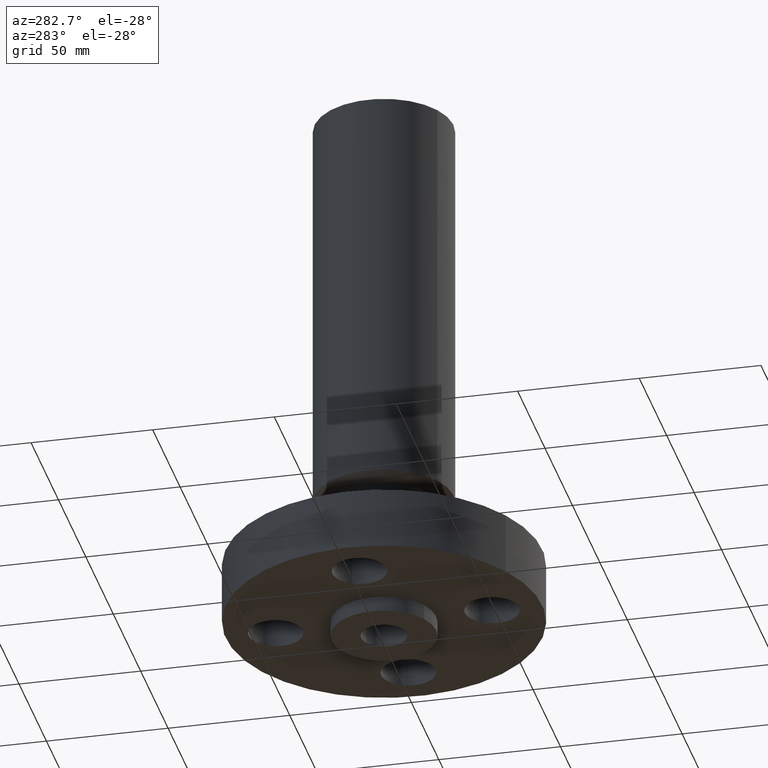
[diagram: clean part render]
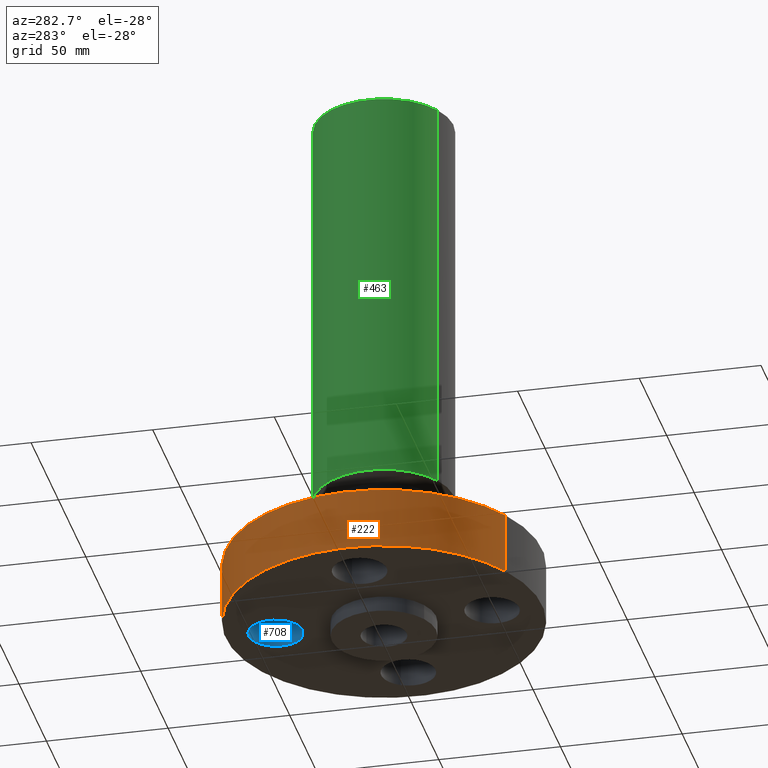
[diagram: same view with three faces highlighted in distinct colors, each labeled with its STEP entity id]
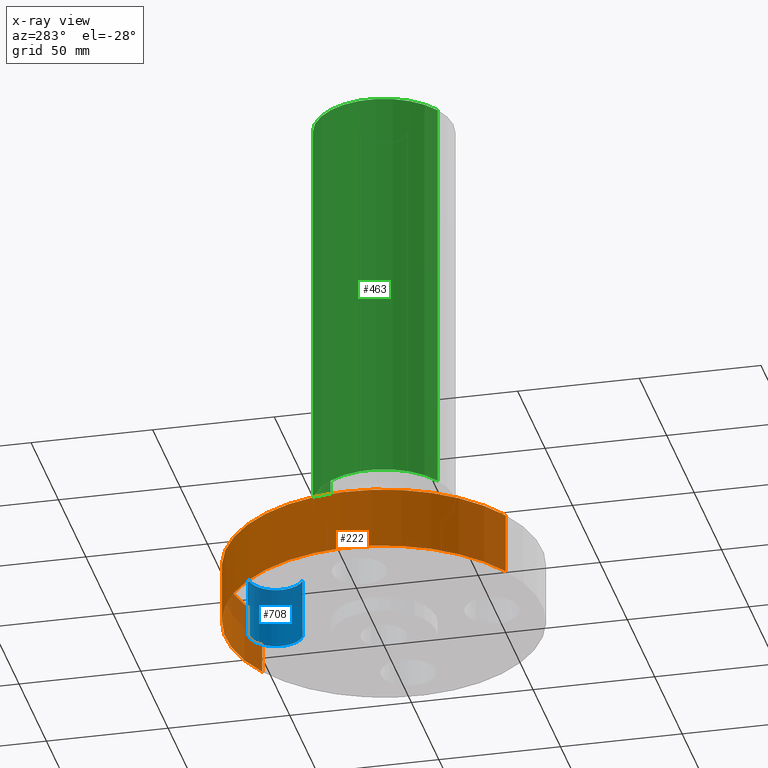
[diagram: x-ray of the same camera — body ghosted, the three highlighted faces saturated]
A machine part, auxiliary view with three faces highlighted in distinct colors.
The next image is the same camera in x-ray (body ghosted, the three faces saturated) — at least one of them is partly hidden behind the body in this view.
Their STEP definitions:

[orange] entity #222 — the highlighted cylindrical surface (partial cylindrical patch) has radius 65.024 mm, axis along (0, 0, -1).
#82=AXIS2_PLACEMENT_3D('Circle Axis2P3D',#80,#81,$) ;
#195=AXIS2_PLACEMENT_3D('Cylinder Axis2P3D',#192,#193,#194) ;
#206=AXIS2_PLACEMENT_3D('Circle Axis2P3D',#204,#205,$) ;
#80=CARTESIAN_POINT('Axis2P3D Location',(0.,0.,0.)) ;
#84=CARTESIAN_POINT('Vertex',(-1.22732937883,-2.24661135845,0.)) ;
#86=CARTESIAN_POINT('Vertex',(1.22732937883,2.24661135845,0.)) ;
#192=CARTESIAN_POINT('Axis2P3D Location',(0.,0.,4.25000000002)) ;
#197=CARTESIAN_POINT('Line Origine',(-1.22732937883,-2.24661135845,0.500000000002)) ;
#201=CARTESIAN_POINT('Vertex',(-1.22732937883,-2.24661135845,1.)) ;
#204=CARTESIAN_POINT('Axis2P3D Location',(0.,0.,1.)) ;
#208=CARTESIAN_POINT('Vertex',(1.22732937883,2.24661135845,1.)) ;
#211=CARTESIAN_POINT('Line Origine',(1.22732937883,2.24661135845,0.500000000002)) ;
#81=DIRECTION('Axis2P3D Direction',(0.,0.,-0.0393700787402)) ;
#193=DIRECTION('Axis2P3D Direction',(0.,0.,-0.0393700787402)) ;
#194=DIRECTION('Axis2P3D XDirection',(0.0188750212049,0.0345504945626,0.)) ;
#198=DIRECTION('Vector Direction',(0.,0.,-0.0393700787402)) ;
#205=DIRECTION('Axis2P3D Direction',(0.,0.,-0.0393700787402)) ;
#212=DIRECTION('Vector Direction',(0.,0.,-0.0393700787402)) ;
#199=VECTOR('Line Direction',#198,0.0393700787402) ;
#213=VECTOR('Line Direction',#212,0.0393700787402) ;
#217=ORIENTED_EDGE('',*,*,#88,.F.) ;
#218=ORIENTED_EDGE('',*,*,#203,.T.) ;
#219=ORIENTED_EDGE('',*,*,#210,.T.) ;
#220=ORIENTED_EDGE('',*,*,#215,.F.) ;
#222=ADVANCED_FACE('PartBody',(#221),#196,.T.) ;
#83=CIRCLE('generated circle',#82,2.56000000001) ;
#207=CIRCLE('generated circle',#206,2.56000000001) ;
#196=CYLINDRICAL_SURFACE('generated cylinder',#195,2.56000000001) ;
#88=EDGE_CURVE('',#85,#87,#83,.T.) ;
#203=EDGE_CURVE('',#85,#202,#200,.F.) ;
#210=EDGE_CURVE('',#202,#209,#207,.T.) ;
#215=EDGE_CURVE('',#87,#209,#214,.F.) ;
#216=EDGE_LOOP('',(#217,#218,#219,#220)) ;
#221=FACE_OUTER_BOUND('',#216,.T.) ;
#200=LINE('Line',#197,#199) ;
#214=LINE('Line',#211,#213) ;
#85=VERTEX_POINT('',#84) ;
#87=VERTEX_POINT('',#86) ;
#202=VERTEX_POINT('',#201) ;
#209=VERTEX_POINT('',#208) ;

[blue] entity #708 — the highlighted cylindrical surface (edge-blend (fillet) strip) has radius 11.176 mm, axis along (0, 0, 1).
#163=AXIS2_PLACEMENT_3D('Circle Axis2P3D',#161,#162,$) ;
#681=AXIS2_PLACEMENT_3D('Cylinder Axis2P3D',#678,#679,#680) ;
#692=AXIS2_PLACEMENT_3D('Circle Axis2P3D',#690,#691,$) ;
#161=CARTESIAN_POINT('Axis2P3D Location',(-4.89547160465E-016,1.75000000001,0.)) ;
#165=CARTESIAN_POINT('Vertex',(-0.210947236987,2.13613632724,0.)) ;
#167=CARTESIAN_POINT('Vertex',(0.210947236987,1.36386367277,0.)) ;
#678=CARTESIAN_POINT('Axis2P3D Location',(-3.21469784777E-016,1.75000000001,0.00393700787402)) ;
#683=CARTESIAN_POINT('Line Origine',(0.210947236987,1.36386367277,0.500000000002)) ;
#687=CARTESIAN_POINT('Vertex',(0.210947236987,1.36386367277,1.)) ;
#690=CARTESIAN_POINT('Axis2P3D Location',(-3.21469784777E-016,1.75000000001,1.)) ;
#694=CARTESIAN_POINT('Vertex',(-0.210947236987,2.13613632724,1.)) ;
#697=CARTESIAN_POINT('Line Origine',(-0.210947236987,2.13613632724,0.500000000002)) ;
#162=DIRECTION('Axis2P3D Direction',(0.,0.,-0.0393700787402)) ;
#679=DIRECTION('Axis2P3D Direction',(0.,0.,0.0393700787402)) ;
#680=DIRECTION('Axis2P3D XDirection',(-0.0188750212049,0.0345504945626,0.)) ;
#684=DIRECTION('Vector Direction',(0.,0.,0.0393700787402)) ;
#691=DIRECTION('Axis2P3D Direction',(0.,0.,0.0393700787402)) ;
#698=DIRECTION('Vector Direction',(0.,0.,0.0393700787402)) ;
#685=VECTOR('Line Direction',#684,0.0393700787402) ;
#699=VECTOR('Line Direction',#698,0.0393700787402) ;
#703=ORIENTED_EDGE('',*,*,#689,.F.) ;
#704=ORIENTED_EDGE('',*,*,#696,.F.) ;
#705=ORIENTED_EDGE('',*,*,#701,.T.) ;
#706=ORIENTED_EDGE('',*,*,#169,.T.) ;
#708=ADVANCED_FACE('PartBody',(#707),#682,.F.) ;
#164=CIRCLE('generated circle',#163,0.440000000002) ;
#693=CIRCLE('generated circle',#692,0.440000000002) ;
#682=CYLINDRICAL_SURFACE('generated cylinder',#681,0.440000000002) ;
#169=EDGE_CURVE('',#166,#168,#164,.T.) ;
#689=EDGE_CURVE('',#688,#168,#686,.F.) ;
#696=EDGE_CURVE('',#695,#688,#693,.F.) ;
#701=EDGE_CURVE('',#695,#166,#700,.F.) ;
#702=EDGE_LOOP('',(#703,#704,#705,#706)) ;
#707=FACE_OUTER_BOUND('',#702,.T.) ;
#686=LINE('Line',#683,#685) ;
#700=LINE('Line',#697,#699) ;
#166=VERTEX_POINT('',#165) ;
#168=VERTEX_POINT('',#167) ;
#688=VERTEX_POINT('',#687) ;
#695=VERTEX_POINT('',#694) ;

[green] entity #463 — the highlighted cylindrical surface (partial cylindrical patch) has radius 28.575 mm, axis along (0, 0, -1).
#411=AXIS2_PLACEMENT_3D('Circle Axis2P3D',#409,#410,$) ;
#424=AXIS2_PLACEMENT_3D('Cylinder Axis2P3D',#421,#422,#423) ;
#454=AXIS2_PLACEMENT_3D('Circle Axis2P3D',#452,#453,$) ;
#387=CARTESIAN_POINT('Vertex',(0.539353730932,0.987280382131,2.12701705923)) ;
#394=CARTESIAN_POINT('Vertex',(-0.539353730932,-0.987280382131,2.12701705923)) ;
#409=CARTESIAN_POINT('Axis2P3D Location',(0.,0.,2.12701705923)) ;
#421=CARTESIAN_POINT('Axis2P3D Location',(0.,0.,4.25000000002)) ;
#426=CARTESIAN_POINT('Line Origine',(0.539353730932,0.987280382131,5.43850852963)) ;
#430=CARTESIAN_POINT('Vertex',(0.539353730932,0.987280382131,8.75000000004)) ;
#437=CARTESIAN_POINT('Vertex',(-0.539353730932,-0.987280382131,8.75000000004)) ;
#440=CARTESIAN_POINT('Line Origine',(-0.539353730932,-0.987280382131,5.43850852963)) ;
#452=CARTESIAN_POINT('Axis2P3D Location',(0.,0.,8.75000000003)) ;
#410=DIRECTION('Axis2P3D Direction',(-0.,0.,0.0393700787402)) ;
#422=DIRECTION('Axis2P3D Direction',(0.,0.,-0.0393700787402)) ;
#423=DIRECTION('Axis2P3D XDirection',(-0.0188750212049,-0.0345504945626,0.)) ;
#427=DIRECTION('Vector Direction',(0.,0.,-0.0393700787402)) ;
#441=DIRECTION('Vector Direction',(0.,0.,-0.0393700787402)) ;
#453=DIRECTION('Axis2P3D Direction',(0.,0.,-0.0393700787402)) ;
#428=VECTOR('Line Direction',#427,0.0393700787402) ;
#442=VECTOR('Line Direction',#441,0.0393700787402) ;
#458=ORIENTED_EDGE('',*,*,#413,.F.) ;
#459=ORIENTED_EDGE('',*,*,#444,.T.) ;
#460=ORIENTED_EDGE('',*,*,#456,.T.) ;
#461=ORIENTED_EDGE('',*,*,#432,.F.) ;
#463=ADVANCED_FACE('PartBody',(#462),#425,.T.) ;
#412=CIRCLE('generated circle',#411,1.125) ;
#455=CIRCLE('generated circle',#454,1.125) ;
#425=CYLINDRICAL_SURFACE('generated cylinder',#424,1.125) ;
#413=EDGE_CURVE('',#395,#388,#412,.F.) ;
#432=EDGE_CURVE('',#388,#431,#429,.F.) ;
#444=EDGE_CURVE('',#395,#438,#443,.F.) ;
#456=EDGE_CURVE('',#438,#431,#455,.T.) ;
#457=EDGE_LOOP('',(#458,#459,#460,#461)) ;
#462=FACE_OUTER_BOUND('',#457,.T.) ;
#429=LINE('Line',#426,#428) ;
#443=LINE('Line',#440,#442) ;
#388=VERTEX_POINT('',#387) ;
#395=VERTEX_POINT('',#394) ;
#431=VERTEX_POINT('',#430) ;
#438=VERTEX_POINT('',#437) ;